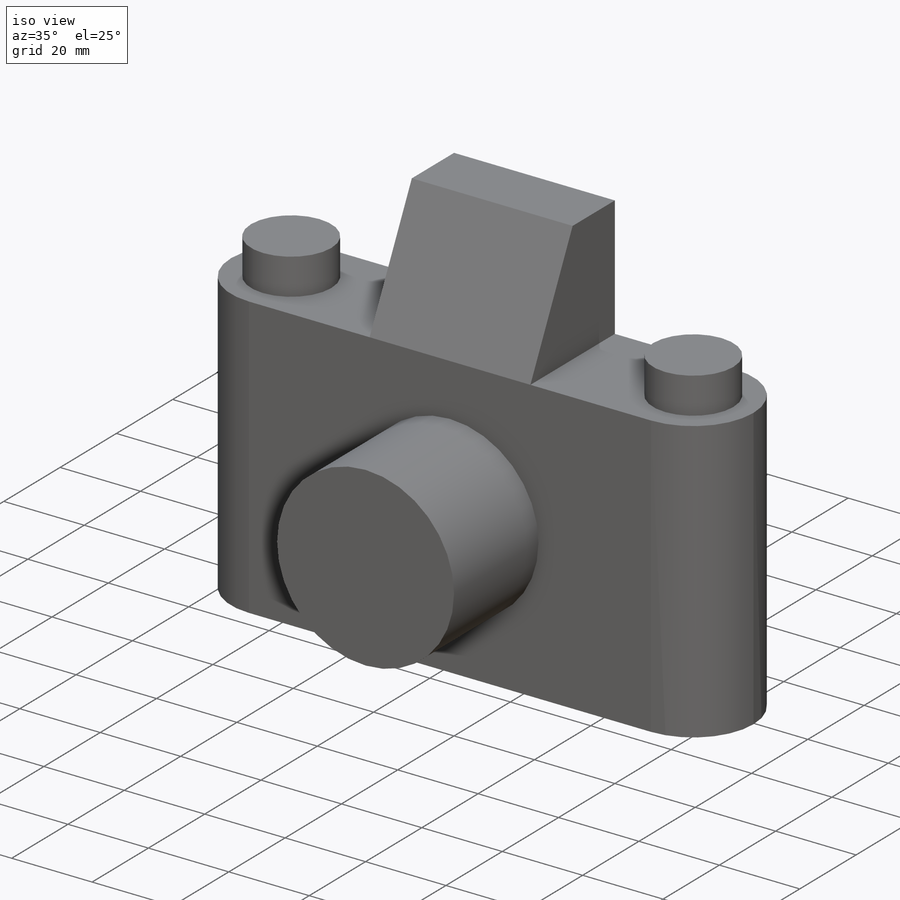
[diagram: iso view]
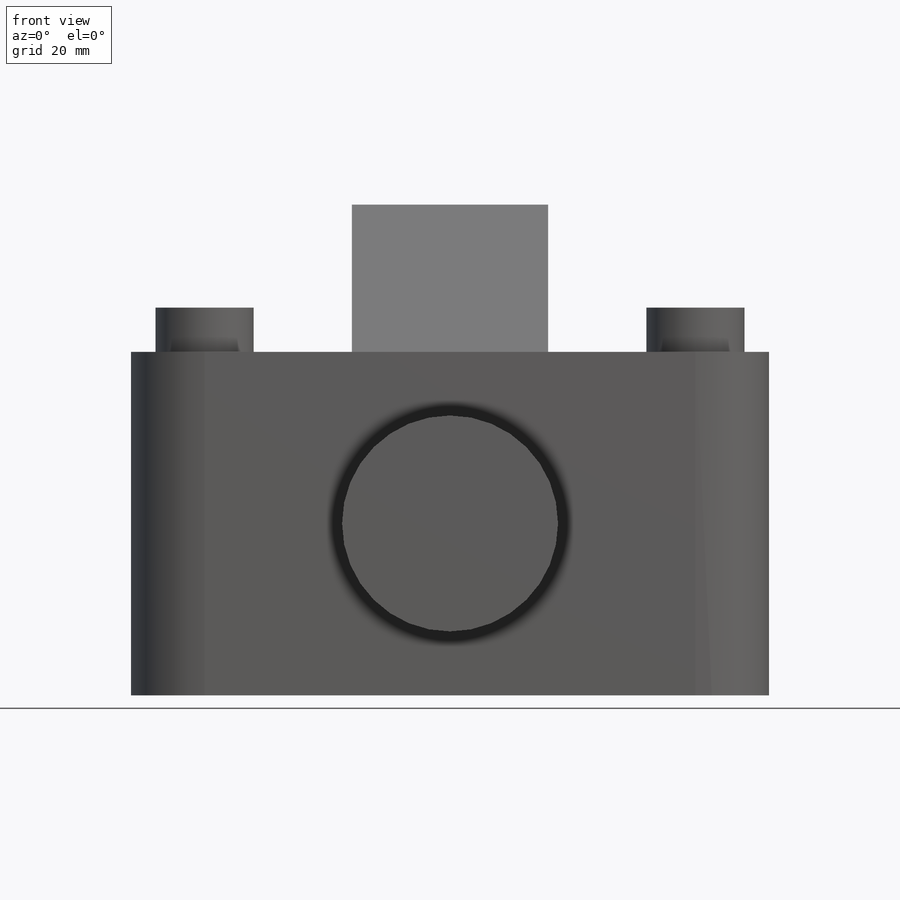
[diagram: front view]
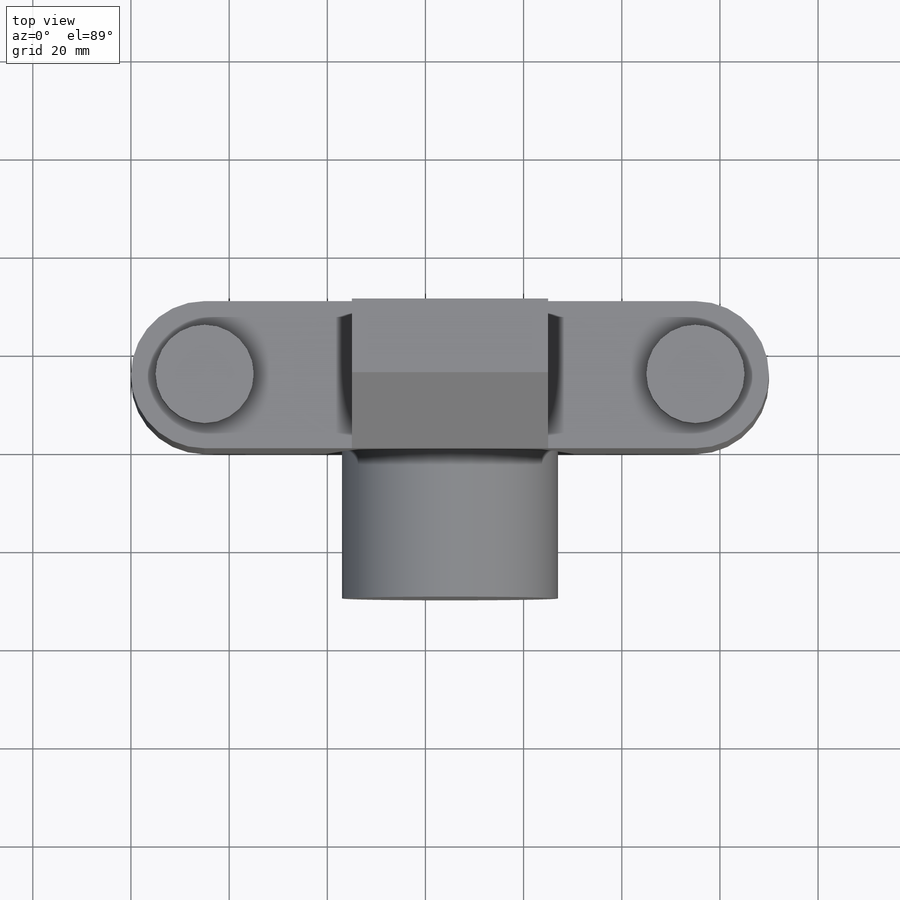
[diagram: top view]
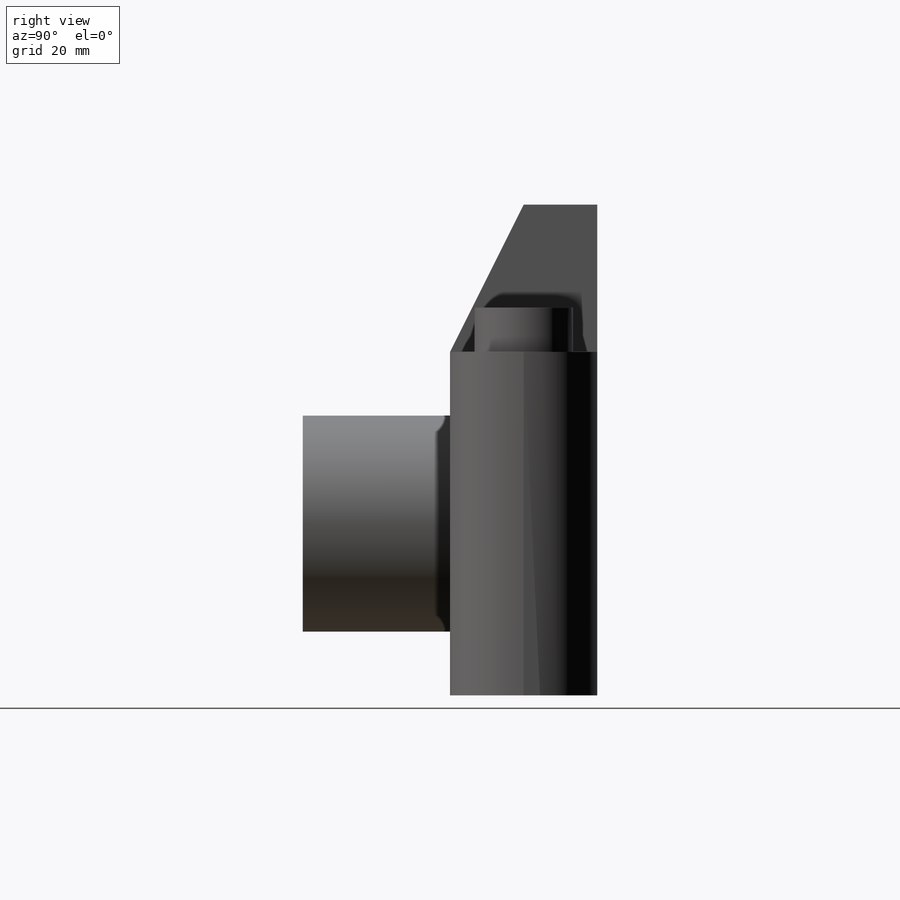
[diagram: right view]
SOLIDWORKS PART (.sldprt)
format: sldprt  version: not decoded by parser v0  size: 215,552 bytes
history: native  units: mm
features: sketch x4, extrude x4, material x1, fillet x1, plane x1, mirror x1 (+12 scaffold rows collapsed)
feature tree (24):
  scaffold x12  (default folders/planes/origin — collapsed)
  material  "Material <not specified>"
  sketch  "Sketch1"  dims[D1=130.0mm D2=30.0mm]
  extrude  "Main Body"  Depth=70mm
  fillet  "15mm fillet"  Radius=15mm
  sketch  "Sketch2"  dims[D1=44.0mm D2=50.0mm D3=35.0mm]
  extrude  "Lens"  Depth=30mm
  plane  "Plane1"  Offset=65mm
  sketch  "Sketch3"  dims[D1=20.0mm D2=15.0mm D3=15.0mm]
  extrude  "Controls"  Depth=9mm
  mirror  "Mirror1"
  sketch  "Sketch4"  dims[D1=30.0mm D2=15.0mm D3=~16.972493mm]
  extrude  "Flash"  Depth=20mm
decode coverage: 9 of 10 modeling features carry decoded parameters
note: ~ marks probable driven/reference dimensions
note: suppression state not decoded; provenance and decode notes live in map.json
